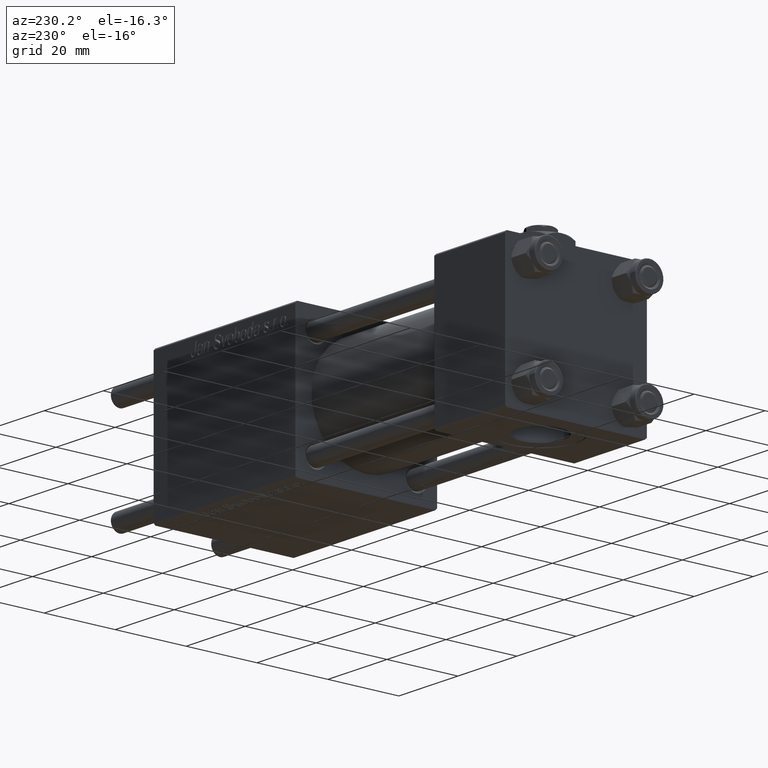
[diagram: clean part render]
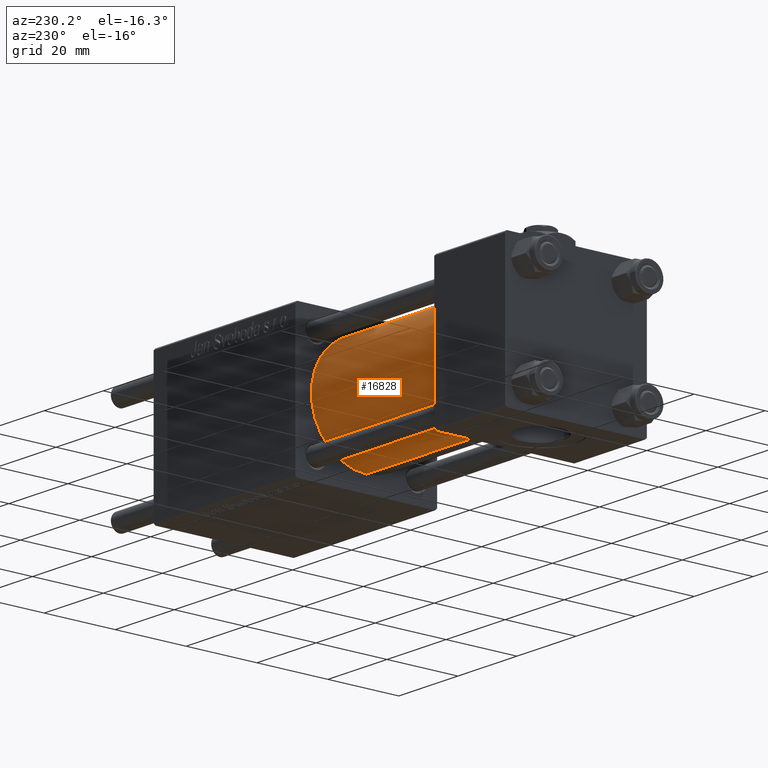
[diagram: same view with one face highlighted and labeled with its STEP entity id]
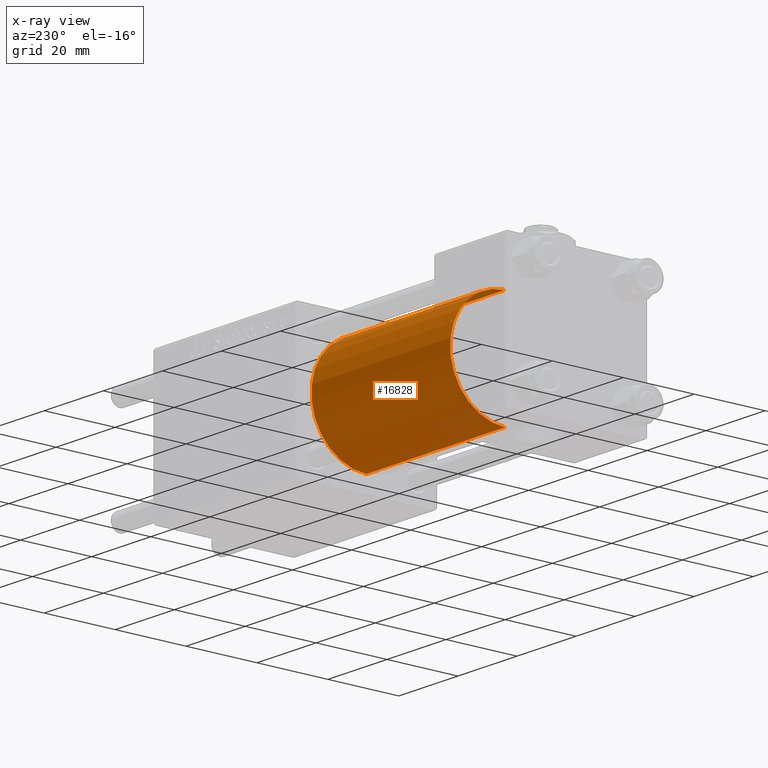
[diagram: x-ray of the same camera — body ghosted, the highlighted face saturated]
A machine part, auxiliary view. The second image highlights one B-rep face of the part: STEP entity #16828.
The next image is the same camera in x-ray: the body ghosted, the highlighted face saturated — about 5% of this face is hidden behind the body in this view.
In plain terms, the highlighted cylindrical surface (partial cylindrical patch) has radius 15.5 mm, axis along (-1, -0, -0).
Its self-contained STEP definition (entity closure, byte-faithful):
#2435 = DIRECTION ( 'NONE',  ( 1.000000000000000000, 0.000000000000000000, 0.000000000000000000 ) ) ;
#2778 = VERTEX_POINT ( 'NONE', #39714 ) ;
#5414 = VERTEX_POINT ( 'NONE', #53359 ) ;
#8527 = CARTESIAN_POINT ( 'NONE',  ( 71.00000000000001421, -2.602085213965210642E-15, 0.000000000000000000 ) ) ;
#10166 = DIRECTION ( 'NONE',  ( 0.000000000000000000, 0.000000000000000000, -1.000000000000000000 ) ) ;
#10369 = EDGE_CURVE ( 'NONE', #2778, #5414, #38480, .T. ) ;
#10850 = DIRECTION ( 'NONE',  ( -1.000000000000000000, -0.000000000000000000, -0.000000000000000000 ) ) ;
#11171 = DIRECTION ( 'NONE',  ( 0.000000000000000000, 0.000000000000000000, 1.000000000000000000 ) ) ;
#11613 = CARTESIAN_POINT ( 'NONE',  ( 24.00000000000000000, -2.602085213965210642E-15, 15.50000000000000000 ) ) ;
#12810 = AXIS2_PLACEMENT_3D ( 'NONE', #24352, #2435, #10166 ) ;
#12973 = FACE_OUTER_BOUND ( 'NONE', #28396, .T. ) ;
#15030 = CARTESIAN_POINT ( 'NONE',  ( 24.00000000000000000, -2.602085213965210642E-15, 0.000000000000000000 ) ) ;
#16828 = ADVANCED_FACE ( 'NONE', ( #12973 ), #53590, .T. ) ;
#20373 = DIRECTION ( 'NONE',  ( -1.000000000000000000, -0.000000000000000000, -0.000000000000000000 ) ) ;
#21600 = EDGE_CURVE ( 'NONE', #31438, #38320, #47882, .T. ) ;
#22141 = DIRECTION ( 'NONE',  ( -1.000000000000000000, -0.000000000000000000, -0.000000000000000000 ) ) ;
#24352 = CARTESIAN_POINT ( 'NONE',  ( 71.00000000000001421, -2.602085213965210642E-15, 0.000000000000000000 ) ) ;
#24746 = CARTESIAN_POINT ( 'NONE',  ( 71.00000000000001421, -2.602085213965210642E-15, 15.50000000000000000 ) ) ;
#26105 = EDGE_CURVE ( 'NONE', #2778, #31438, #57322, .T. ) ;
#26892 = VECTOR ( 'NONE', #10850, 1000.000000000000000 ) ;
#28011 = ORIENTED_EDGE ( 'NONE', *, *, #26105, .F. ) ;
#28396 = EDGE_LOOP ( 'NONE', ( #28011, #58202, #56380, #48182 ) ) ;
#31345 = DIRECTION ( 'NONE',  ( 0.000000000000000000, 0.000000000000000000, 1.000000000000000000 ) ) ;
#31438 = VERTEX_POINT ( 'NONE', #36442 ) ;
#33444 = EDGE_CURVE ( 'NONE', #5414, #38320, #41177, .T. ) ;
#36442 = CARTESIAN_POINT ( 'NONE',  ( 71.00000000000001421, -2.602085213965210642E-15, 15.50000000000000000 ) ) ;
#38320 = VERTEX_POINT ( 'NONE', #11613 ) ;
#38480 = LINE ( 'NONE', #41767, #53156 ) ;
#39714 = CARTESIAN_POINT ( 'NONE',  ( 71.00000000000001421, -7.038826752868131828E-16, -15.50000000000000000 ) ) ;
#41177 = CIRCLE ( 'NONE', #48748, 15.50000000000000000 ) ;
#41767 = CARTESIAN_POINT ( 'NONE',  ( 71.00000000000001421, -7.038826752868131828E-16, -15.50000000000000000 ) ) ;
#46457 = DIRECTION ( 'NONE',  ( 1.000000000000000000, 0.000000000000000000, 0.000000000000000000 ) ) ;
#47882 = LINE ( 'NONE', #24746, #26892 ) ;
#48182 = ORIENTED_EDGE ( 'NONE', *, *, #21600, .F. ) ;
#48748 = AXIS2_PLACEMENT_3D ( 'NONE', #15030, #46457, #11171 ) ;
#49595 = AXIS2_PLACEMENT_3D ( 'NONE', #8527, #22141, #31345 ) ;
#53156 = VECTOR ( 'NONE', #20373, 1000.000000000000000 ) ;
#53359 = CARTESIAN_POINT ( 'NONE',  ( 24.00000000000000000, -7.038826752868131828E-16, -15.50000000000000000 ) ) ;
#53590 = CYLINDRICAL_SURFACE ( 'NONE', #49595, 15.50000000000000000 ) ;
#56380 = ORIENTED_EDGE ( 'NONE', *, *, #33444, .T. ) ;
#57322 = CIRCLE ( 'NONE', #12810, 15.50000000000000000 ) ;
#58202 = ORIENTED_EDGE ( 'NONE', *, *, #10369, .T. ) ;